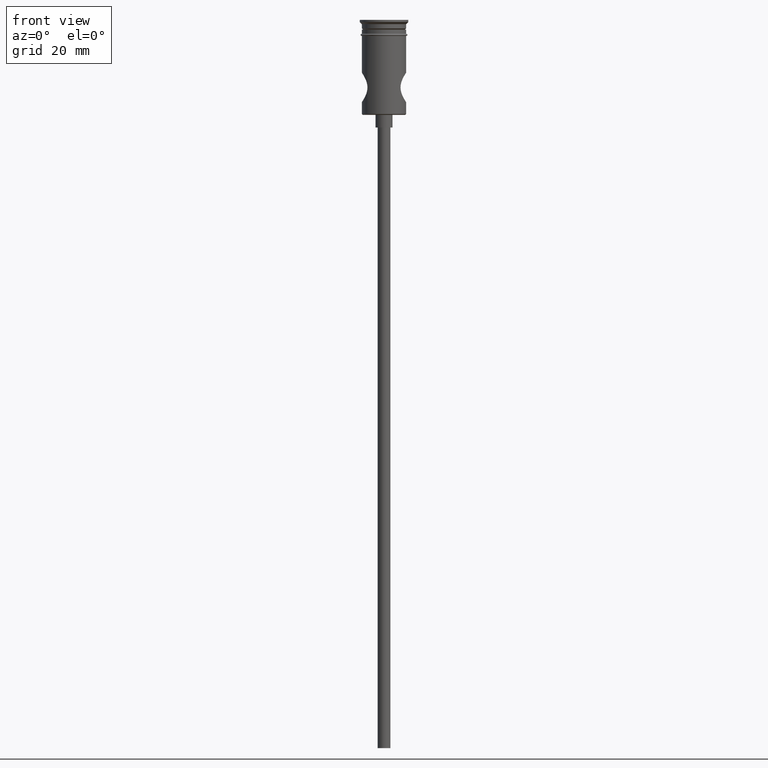
[diagram: clean part render]
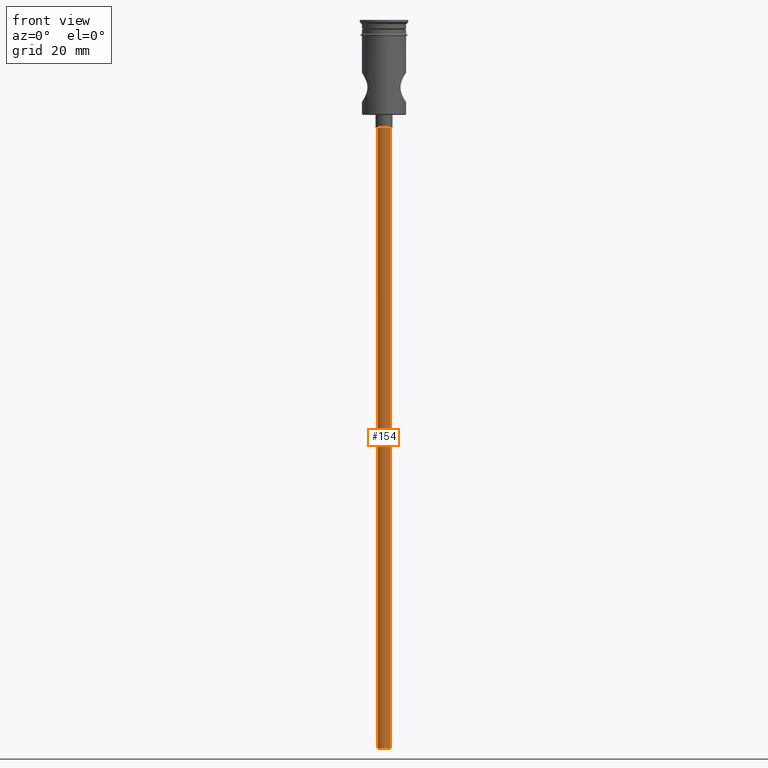
[diagram: same view with one face highlighted and labeled with its STEP entity id]
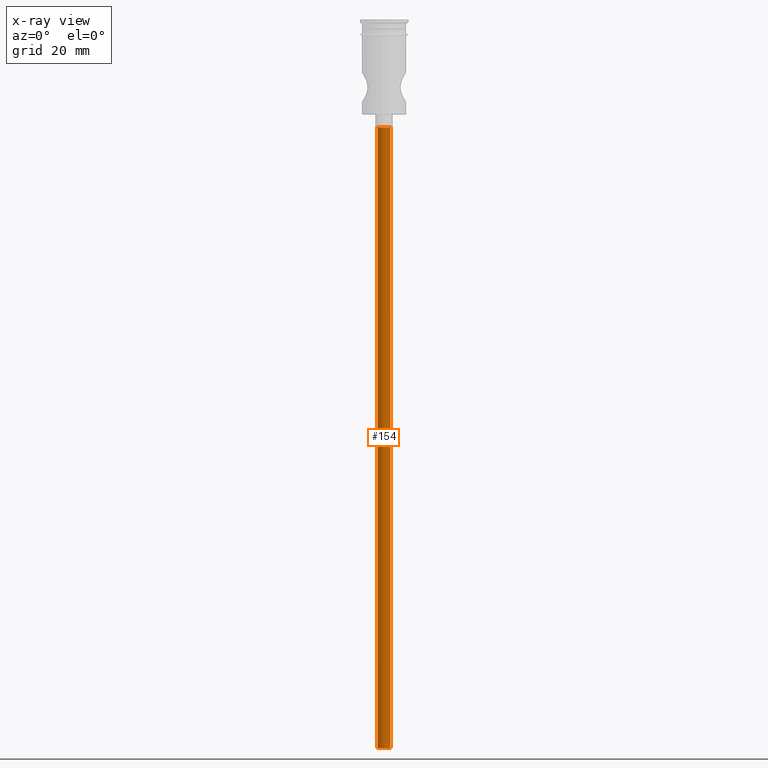
[diagram: x-ray of the same camera — body ghosted, the highlighted face saturated]
A machine part, front view. The second image highlights one B-rep face of the part: STEP entity #154.
The next image is the same camera in x-ray: the body ghosted, the highlighted face saturated — about 0% of this face is hidden behind the body in this view.
In plain terms, the highlighted cylindrical surface (edge-blend (fillet) strip) has radius 1.5 mm, axis along (-0, -0, 1).
Its self-contained STEP definition (entity closure, byte-faithful):
#42 = DIRECTION ( 'NONE',  ( -1.000000000000000000, 0.000000000000000000, 0.000000000000000000 ) ) ;
#118 = CARTESIAN_POINT ( 'NONE',  ( 0.000000000000000000, 0.000000000000000000, -25.50000000000000000 ) ) ;
#154 = ADVANCED_FACE ( 'NONE', ( #606 ), #1050, .T. ) ;
#220 = DIRECTION ( 'NONE',  ( 0.000000000000000000, 0.000000000000000000, -1.000000000000000000 ) ) ;
#299 = DIRECTION ( 'NONE',  ( -0.000000000000000000, -0.000000000000000000, 1.000000000000000000 ) ) ;
#315 = VECTOR ( 'NONE', #881, 1000.000000000000000 ) ;
#334 = CARTESIAN_POINT ( 'NONE',  ( -1.500000000000000222, 1.836970198721030181E-16, -25.50000000000000000 ) ) ;
#356 = ORIENTED_EDGE ( 'NONE', *, *, #1426, .T. ) ;
#361 = ORIENTED_EDGE ( 'NONE', *, *, #1140, .F. ) ;
#393 = CARTESIAN_POINT ( 'NONE',  ( 1.500000000000000222, 0.000000000000000000, -172.5000000000000000 ) ) ;
#398 = CIRCLE ( 'NONE', #1202, 1.500000000000000222 ) ;
#439 = EDGE_CURVE ( 'NONE', #602, #455, #1427, .T. ) ;
#448 = LINE ( 'NONE', #1106, #605 ) ;
#449 = EDGE_CURVE ( 'NONE', #1395, #455, #515, .T. ) ;
#455 = VERTEX_POINT ( 'NONE', #334 ) ;
#456 = CARTESIAN_POINT ( 'NONE',  ( -1.500000000000000222, 1.836970198721030181E-16, -172.5000000000000000 ) ) ;
#460 = EDGE_LOOP ( 'NONE', ( #798, #361, #356, #1338 ) ) ;
#510 = CARTESIAN_POINT ( 'NONE',  ( -1.500000000000000222, 1.836970198721030181E-16, -172.5000000000000000 ) ) ;
#515 = CIRCLE ( 'NONE', #1307, 1.500000000000000222 ) ;
#561 = VERTEX_POINT ( 'NONE', #393 ) ;
#602 = VERTEX_POINT ( 'NONE', #510 ) ;
#605 = VECTOR ( 'NONE', #758, 1000.000000000000000 ) ;
#606 = FACE_OUTER_BOUND ( 'NONE', #460, .T. ) ;
#668 = CARTESIAN_POINT ( 'NONE',  ( 1.500000000000000222, 0.000000000000000000, -25.50000000000000000 ) ) ;
#758 = DIRECTION ( 'NONE',  ( -0.000000000000000000, -0.000000000000000000, 1.000000000000000000 ) ) ;
#798 = ORIENTED_EDGE ( 'NONE', *, *, #439, .F. ) ;
#863 = DIRECTION ( 'NONE',  ( 1.000000000000000000, 0.000000000000000000, 0.000000000000000000 ) ) ;
#881 = DIRECTION ( 'NONE',  ( -0.000000000000000000, -0.000000000000000000, 1.000000000000000000 ) ) ;
#1010 = DIRECTION ( 'NONE',  ( 0.000000000000000000, 0.000000000000000000, -1.000000000000000000 ) ) ;
#1050 = CYLINDRICAL_SURFACE ( 'NONE', #1112, 1.500000000000000222 ) ;
#1106 = CARTESIAN_POINT ( 'NONE',  ( 1.500000000000000222, 0.000000000000000000, -172.5000000000000000 ) ) ;
#1112 = AXIS2_PLACEMENT_3D ( 'NONE', #1420, #299, #863 ) ;
#1140 = EDGE_CURVE ( 'NONE', #561, #602, #398, .T. ) ;
#1202 = AXIS2_PLACEMENT_3D ( 'NONE', #1254, #220, #42 ) ;
#1233 = DIRECTION ( 'NONE',  ( -1.000000000000000000, 0.000000000000000000, 0.000000000000000000 ) ) ;
#1254 = CARTESIAN_POINT ( 'NONE',  ( 0.000000000000000000, 0.000000000000000000, -172.5000000000000000 ) ) ;
#1307 = AXIS2_PLACEMENT_3D ( 'NONE', #118, #1010, #1233 ) ;
#1338 = ORIENTED_EDGE ( 'NONE', *, *, #449, .T. ) ;
#1395 = VERTEX_POINT ( 'NONE', #668 ) ;
#1420 = CARTESIAN_POINT ( 'NONE',  ( 0.000000000000000000, 0.000000000000000000, -172.5000000000000000 ) ) ;
#1426 = EDGE_CURVE ( 'NONE', #561, #1395, #448, .T. ) ;
#1427 = LINE ( 'NONE', #456, #315 ) ;